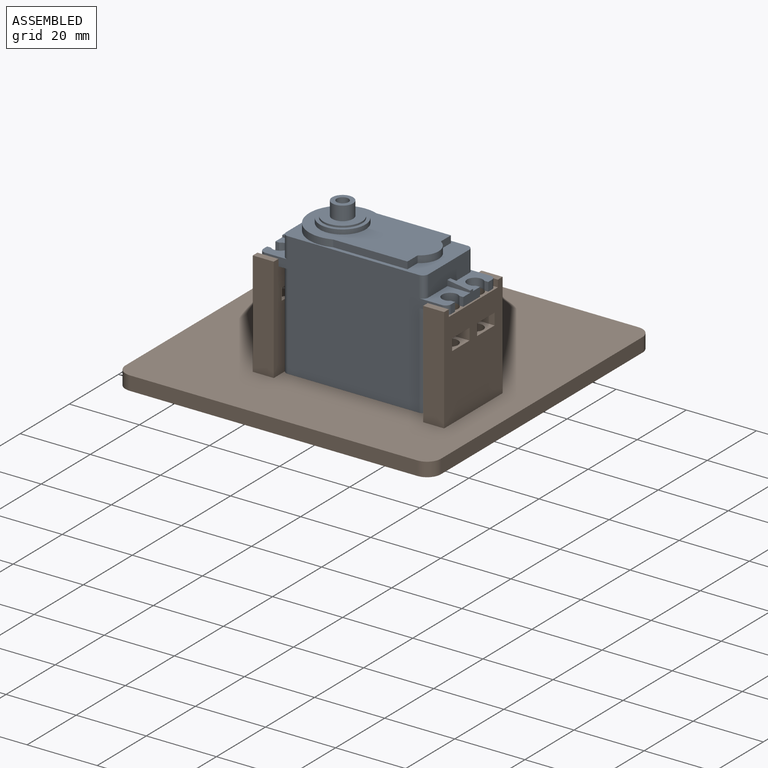
[diagram: assembled view]
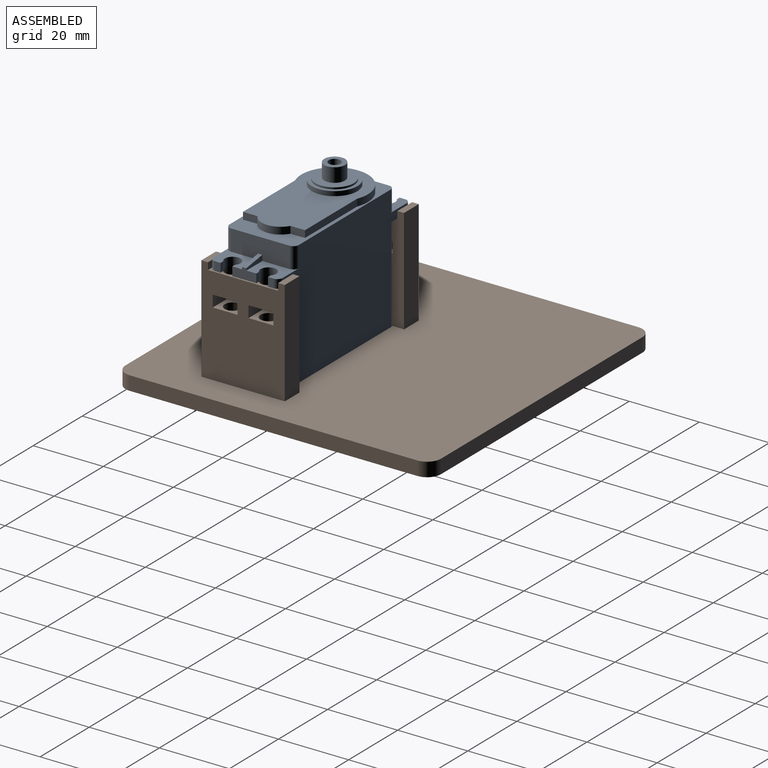
[diagram: assembled view, second angle]
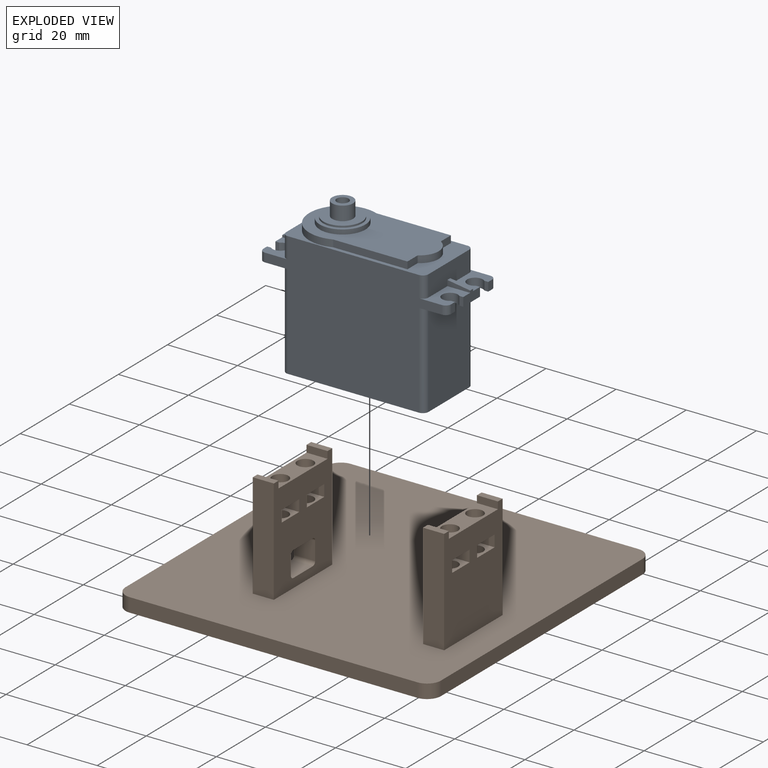
[diagram: exploded view]
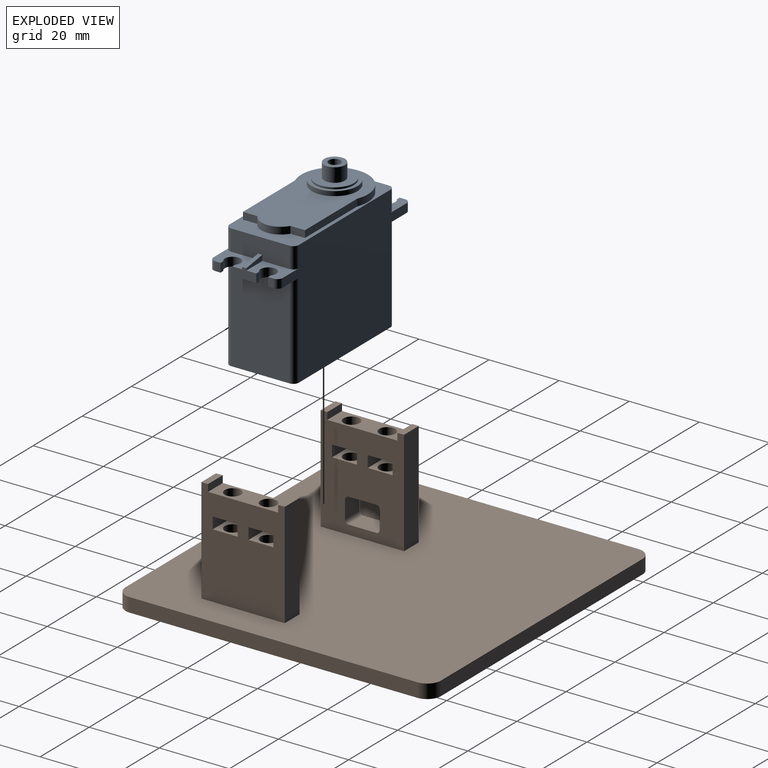
[diagram: exploded view, second angle]
FCSTD DOCUMENT  (FreeCAD 2023.1102R14555 (Git shallow))
Label: Base_Plate
License: All rights reserved
LicenseURL: https://en.wikipedia.org/wiki/All_rights_reserved
objects: Sketcher::SketchObject×11, Part::FeaturePython×7, App::FeaturePython×7, PartDesign::Pad×6, PartDesign::Pocket×6, PartDesign::Plane×5, PartDesign::Fillet×3, PartDesign::SubShapeBinder×2, PartDesign::Body×2, App::Part×2, App::Link×1
note: 82 computed .brp shape members not serialized (recipe doc carries the construction recipe); baked Part::Feature solids carry a one-line shape summary decoded from their .brp
EXTERNAL_REF file=Hitec_D625MW.FCStd obj=Part
EXTERNAL_REF file=Final_Assembly.FCStd obj=Assembly

FEATURE [App::Link] Link  label="Link(Hitec_D625MW)"
  AutoLinkLabel = true
  AutoPlacement = true
  LinkPlacement = pos=(-10.3,-9.9,-37.5) rot=(0,0,1;0rad)
  LinkedObject = -> <external Hitec_D625MW.FCStd>#Part
  Placement = pos=(-10.3,-9.9,-37.5) rot=(0,0,1;0rad)
  SyncGroupVisibility = false
  TreeRank = 1
  _LinkVersion = 1
FEATURE [Sketcher::SketchObject] Sketch
  ArcFitTolerance = 1e-06
  AttachmentSupport = -> [XY_Plane]
  ExternalBSplineMaxDegree = 5
  ExternalBSplineTolerance = 0.0001
  FullyConstrained = true
  InternalTolerance = 1e-06
  InvalidShape = false
  MakeInternals = false
  MapMode = 5
  Support = -> [XY_Plane]
  TreeRank = 21
  ValidateShape = false
  sketch-geometry (6):
    g0: LineSegment StartX=-40 StartY=-40 StartZ=0 EndX=-40 EndY=40 EndZ=0
    g1: LineSegment StartX=-40 StartY=40 StartZ=0 EndX=40 EndY=40 EndZ=0
    g2: LineSegment StartX=40 StartY=40 StartZ=0 EndX=40 EndY=-40 EndZ=0
    g3: LineSegment StartX=40 StartY=-40 StartZ=0 EndX=-40 EndY=-40 EndZ=0
    g4: GeomPoint [constr] X=0 Y=0 Z=0
    g5: Circle CenterX=0 CenterY=0 CenterZ=0 NormalX=0 NormalY=0 NormalZ=1 AngleXU=0 Radius=10
  constraints (14):
    c: Coincident(g0,g1)
    c: Coincident(g1,g2)
    c: Coincident(g2,g3)
    c: Coincident(g3,g0)
    c: Horizontal(g1)
    c: Horizontal(g3)
    c: Vertical(g0)
    c: Vertical(g2)
    c: Symmetric(g1,g0,g4)
    c: Coincident(g4,g-1)
    c: Equal(g1,g2)
    c: Distance(g1) = 80
    c: Diameter(g5) = 20
    c: Coincident(g5,g4)
FEATURE [PartDesign::Pad] Pad
  AddSubType = 0
  AlongSketchNormal = false
  AutoTaperInnerAngle = true
  CheckUpToFaceLimits = true
  ClaimChildren = false
  Direction = (0,0,1)
  Fit = 0
  FitJoin = 0
  InnerFit = 0
  InnerFitJoin = 0
  InvalidShape = false
  Length = 4
  Length2 = 10
  Linearize = true
  NewSolid = false
  Profile = -> Sketch
  ReferenceAxis = -> Sketch [N_Axis]
  Refine = true
  Suppress = false
  TaperInnerAngle = 0
  TaperInnerAngleRev = 0
  TreeRank = 22
  Type = 0
  ValidateShape = true
  _ProfileBasedVersion = 1
FEATURE [PartDesign::Fillet] Fillet
  AddSubType = 0
  Base = -> Pad [Edge1,Edge8,Edge5,Edge2]
  BaseFeature = -> Pad
  InvalidShape = false
  NewSolid = false
  Radius = 4
  Refine = true
  SupportTransform = false
  Suppress = false
  TreeRank = 23
  UseAllEdges = false
  ValidateShape = true
FEATURE [PartDesign::SubShapeBinder] Binder  label="Binder(*Hitec_D625MW)"
  BindCopyOnChange = 0
  BindMode = 0
  ClaimChildren = false
  Context = -> Assembly [Parts.Part.Body.Binder.]
  EdgeTolerance = 1e-06
  FillStyle = 0
  Fuse = false
  InvalidShape = false
  MakeFace = true
  MergeEdges = true
  OffsetFill = false
  OffsetIntersection = false
  OffsetJoinType = 0
  OffsetOpenResult = false
  Outline = false
  PartialLoad = false
  Relative = true
  SplitEdges = false
  Support = -> [Link]
  TightBound = false
  TreeRank = 39
  ValidateShape = false
  _Version = 8
FEATURE [Sketcher::SketchObject] Sketch001
  ArcFitTolerance = 1e-06
  AttachmentSupport = -> [Fillet]
  ExternalBSplineMaxDegree = 5
  ExternalBSplineTolerance = 0.0001
  ExternalGeometry = -> [Binder]
  FullyConstrained = true
  InternalTolerance = 1e-06
  InvalidShape = false
  MakeInternals = false
  MapMode = 5
  Placement = pos=(0,0,0) rot=(1,0,0;3.14159rad)
  Support = -> [Fillet]
  TreeRank = 38
  ValidateShape = false
  sketch-geometry (10):
    g0: LineSegment StartX=-17.3 StartY=11.9 StartZ=0 EndX=-10.8 EndY=11.9 EndZ=0
    g1: LineSegment StartX=-10.8 StartY=11.9 StartZ=0 EndX=-10.8 EndY=-11.9 EndZ=0
    g2: LineSegment StartX=-10.8 StartY=-11.9 StartZ=0 EndX=-17.3 EndY=-11.9 EndZ=0
    g3: LineSegment StartX=-17.3 StartY=-11.9 StartZ=0 EndX=-17.3 EndY=11.9 EndZ=0
    g4: LineSegment StartX=30.8 StartY=11.9 StartZ=0 EndX=37.3 EndY=11.9 EndZ=0
    g5: LineSegment StartX=37.3 StartY=11.9 StartZ=0 EndX=37.3 EndY=-11.9 EndZ=0
    g6: LineSegment StartX=37.3 StartY=-11.9 StartZ=0 EndX=30.8 EndY=-11.9 EndZ=0
    g7: LineSegment StartX=30.8 StartY=-11.9 StartZ=0 EndX=30.8 EndY=11.9 EndZ=0
    g8: LineSegment [constr] StartX=-15.2 StartY=9.9 StartZ=0 EndX=-15.2 EndY=11.9 EndZ=0
    g9: LineSegment [constr] StartX=-15.2 StartY=-9.9 StartZ=0 EndX=-15.2 EndY=-11.9 EndZ=0
  constraints (30):
    c: Coincident(g0,g1)
    c: Coincident(g1,g2)
    c: Coincident(g2,g3)
    c: Coincident(g3,g0)
    c: Horizontal(g0)
    c: Horizontal(g2)
    c: Vertical(g1)
    c: Vertical(g3)
    c: Coincident(g4,g5)
    c: Coincident(g5,g6)
    c: Coincident(g6,g7)
    c: Coincident(g7,g4)
    c: Horizontal(g4)
    c: Horizontal(g6)
    c: Vertical(g5)
    c: Vertical(g7)
    c: Equal(g1,g7)
    c: Equal(g0,g4)
    c: Distance(g-10,g1) = 0.5
    c: Distance(g-9,g7) = 0.5
    c: Distance(g-4,g3) = 0.5
    c: Horizontal(g4,g0)
    c: Coincident(g8,g-5)
    c: PointOnObject(g8,g0)
    c: Vertical(g8)
    c: Coincident(g9,g-3)
    c: PointOnObject(g9,g2)
    c: Vertical(g9)
    c: Equal(g9,g8)
    c: Distance(g8) = 2
FEATURE [PartDesign::Pad] Pad001
  AddSubType = 0
  AlongSketchNormal = false
  AutoTaperInnerAngle = true
  BaseFeature = -> Fillet
  CheckUpToFaceLimits = true
  ClaimChildren = false
  Direction = (0,0,-1)
  Fit = 0
  FitJoin = 0
  InnerFit = 0
  InnerFitJoin = 0
  InvalidShape = false
  Length = 10
  Length2 = 10
  Linearize = true
  NewSolid = false
  Profile = -> Sketch001
  ReferenceAxis = -> Sketch001 [N_Axis]
  Refine = true
  Suppress = false
  TaperInnerAngle = 0
  TaperInnerAngleRev = 0
  TreeRank = 40
  Type = 3
  UpToFace = -> Binder [Face2]
  ValidateShape = true
  _ProfileBasedVersion = 1
FEATURE [PartDesign::Plane] DatumPlane
  AttachmentSupport = -> [Pad001]
  InvalidShape = false
  Length = 80
  MapMode = 45
  MinimumLength = 10
  MinimumWidth = 10
  Placement = pos=(10,-1.98471e-11,-8) rot=(-0.707107,0.707107,0;3.14159rad)
  ResizeMode = 0
  Support = -> [Pad001]
  TreeRank = 41
  ValidateShape = false
  Width = 80
FEATURE [Sketcher::SketchObject] Sketch002
  ArcFitTolerance = 1e-06
  AttachmentSupport = -> [DatumPlane]
  ExternalBSplineMaxDegree = 5
  ExternalBSplineTolerance = 0.0001
  ExternalGeometry = -> [Binder,Pad001]
  FullyConstrained = true
  InternalTolerance = 1e-06
  InvalidShape = false
  MakeInternals = false
  MapMode = 5
  Placement = pos=(10,-1.98471e-11,-8) rot=(-0.707107,0.707107,0;3.14159rad)
  Support = -> [DatumPlane]
  TreeRank = 42
  ValidateShape = false
  sketch-geometry (8):
    g0: LineSegment StartX=-0.7 StartY=-20.8 StartZ=0 EndX=0.7 EndY=-20.8 EndZ=0
    g1: LineSegment StartX=0.7 StartY=-20.8 StartZ=0 EndX=0.7 EndY=-27.3 EndZ=0
    g2: LineSegment StartX=0.7 StartY=-27.3 StartZ=0 EndX=-0.7 EndY=-27.3 EndZ=0
    g3: LineSegment StartX=-0.7 StartY=-27.3 StartZ=0 EndX=-0.7 EndY=-20.8 EndZ=0
    g4: LineSegment StartX=0.7 StartY=20.8 StartZ=0 EndX=-0.7 EndY=20.8 EndZ=0
    g5: LineSegment StartX=-0.7 StartY=20.8 StartZ=0 EndX=-0.7 EndY=27.3 EndZ=0
    g6: LineSegment StartX=-0.7 StartY=27.3 StartZ=0 EndX=0.7 EndY=27.3 EndZ=0
    g7: LineSegment StartX=0.7 StartY=27.3 StartZ=0 EndX=0.7 EndY=20.8 EndZ=0
  constraints (22):
    c: Coincident(g0,g1)
    c: Coincident(g1,g2)
    c: Coincident(g2,g3)
    c: Coincident(g3,g0)
    c: Horizontal(g2)
    c: Vertical(g1)
    c: Vertical(g3)
    c: PointOnObject(g0,g-8)
    c: PointOnObject(g1,g-7)
    c: Symmetric(g0,g0,g-2)
    c: Distance(g0,g-6) = 0.1
    c: Coincident(g4,g5)
    c: Coincident(g5,g6)
    c: Coincident(g6,g7)
    c: Coincident(g7,g4)
    c: Horizontal(g6)
    c: Vertical(g5)
    c: Vertical(g7)
    c: PointOnObject(g4,g-9)
    c: PointOnObject(g5,g-10)
    c: Symmetric(g4,g4,g-2)
    c: Distance(g4,g-4) = 0.1
FEATURE [PartDesign::Pocket] Pocket
  AddSubType = 1
  AlongSketchNormal = false
  AutoTaperInnerAngle = true
  BaseFeature = -> Pad001
  CheckUpToFaceLimits = true
  ClaimChildren = false
  Direction = (0,0,1)
  Fit = 0
  FitJoin = 0
  InnerFit = 0
  InnerFitJoin = 0
  InvalidShape = false
  Length = 2.5
  Length2 = 10
  Linearize = true
  NewSolid = false
  Profile = -> Sketch002
  ReferenceAxis = -> Sketch002 [N_Axis]
  Refine = true
  Suppress = false
  TaperInnerAngle = 0
  TaperInnerAngleRev = 0
  TreeRank = 43
  Type = 0
  ValidateShape = true
  _ProfileBasedVersion = 1
  _Version = 1
FEATURE [Sketcher::SketchObject] Sketch003
  ArcFitTolerance = 1e-06
  AttachmentSupport = -> [DatumPlane]
  ExternalBSplineMaxDegree = 5
  ExternalBSplineTolerance = 0.0001
  ExternalGeometry = -> [Pocket,Binder]
  FullyConstrained = true
  InternalTolerance = 1e-06
  InvalidShape = false
  MakeInternals = false
  MapMode = 5
  Placement = pos=(10,-1.98471e-11,-8) rot=(-0.707107,0.707107,0;3.14159rad)
  Support = -> [DatumPlane]
  TreeRank = 44
  ValidateShape = false
  sketch-geometry (16):
    g0: LineSegment StartX=-11.9 StartY=-20.8 StartZ=0 EndX=-10 EndY=-20.8 EndZ=0
    g1: LineSegment StartX=-10 StartY=-20.8 StartZ=0 EndX=-10 EndY=-27.3 EndZ=0
    g2: LineSegment StartX=-10 StartY=-27.3 StartZ=0 EndX=-11.9 EndY=-27.3 EndZ=0
    g3: LineSegment StartX=-11.9 StartY=-27.3 StartZ=0 EndX=-11.9 EndY=-20.8 EndZ=0
    g4: LineSegment StartX=11.9 StartY=-20.8 StartZ=0 EndX=10 EndY=-20.8 EndZ=0
    g5: LineSegment StartX=10 StartY=-20.8 StartZ=0 EndX=10 EndY=-27.3 EndZ=0
    g6: LineSegment StartX=10 StartY=-27.3 StartZ=0 EndX=11.9 EndY=-27.3 EndZ=0
    g7: LineSegment StartX=11.9 StartY=-27.3 StartZ=0 EndX=11.9 EndY=-20.8 EndZ=0
    g8: LineSegment StartX=11.9 StartY=27.3 StartZ=0 EndX=10 EndY=27.3 EndZ=0
    g9: LineSegment StartX=10 StartY=27.3 StartZ=0 EndX=10 EndY=20.8 EndZ=0
    g10: LineSegment StartX=10 StartY=20.8 StartZ=0 EndX=11.9 EndY=20.8 EndZ=0
    g11: LineSegment StartX=11.9 StartY=20.8 StartZ=0 EndX=11.9 EndY=27.3 EndZ=0
    g12: LineSegment StartX=-11.9 StartY=27.3 StartZ=0 EndX=-10 EndY=27.3 EndZ=0
    g13: LineSegment StartX=-10 StartY=27.3 StartZ=0 EndX=-10 EndY=20.8 EndZ=0
    g14: LineSegment StartX=-10 StartY=20.8 StartZ=0 EndX=-11.9 EndY=20.8 EndZ=0
    g15: LineSegment StartX=-11.9 StartY=20.8 StartZ=0 EndX=-11.9 EndY=27.3 EndZ=0
  constraints (40):
    c: Coincident(g0,g1)
    c: Coincident(g1,g2)
    c: Coincident(g2,g3)
    c: Coincident(g3,g0)
    c: Horizontal(g0)
    c: Horizontal(g2)
    c: Vertical(g1)
    c: Coincident(g0,g-6)
    c: Coincident(g2,g-6)
    c: Coincident(g4,g5)
    c: Coincident(g5,g6)
    c: Coincident(g6,g7)
    c: Coincident(g7,g4)
    c: Horizontal(g4)
    c: Horizontal(g6)
    c: Vertical(g5)
    c: Coincident(g4,g-5)
    c: Coincident(g6,g-5)
    c: Coincident(g8,g9)
    c: Coincident(g9,g10)
    c: Coincident(g10,g11)
    c: Coincident(g11,g8)
    c: Horizontal(g8)
    c: Horizontal(g10)
    c: Vertical(g9)
    c: Coincident(g8,g-4)
    c: Coincident(g10,g-4)
    c: Coincident(g12,g13)
    c: Coincident(g13,g14)
    c: Coincident(g14,g15)
    c: Coincident(g15,g12)
    c: Horizontal(g12)
    c: Horizontal(g14)
    c: Vertical(g13)
    c: Coincident(g12,g-3)
    c: Coincident(g14,g-3)
    c: Equal(g12,g8)
    c: Equal(g8,g4)
    c: Equal(g4,g0)
    c: Distance(g-7,g13) = 0.1
FEATURE [PartDesign::Pad] Pad002
  AddSubType = 0
  AlongSketchNormal = false
  AutoTaperInnerAngle = true
  BaseFeature = -> Pocket
  CheckUpToFaceLimits = true
  ClaimChildren = false
  Direction = (0,0,-1)
  Fit = 0
  FitJoin = 0
  InnerFit = 0
  InnerFitJoin = 0
  InvalidShape = false
  Length = 2
  Length2 = 10
  Linearize = true
  NewSolid = false
  Profile = -> Sketch003
  ReferenceAxis = -> Sketch003 [N_Axis]
  Refine = true
  Suppress = false
  TaperInnerAngle = 0
  TaperInnerAngleRev = 0
  TreeRank = 45
  Type = 0
  ValidateShape = true
  _ProfileBasedVersion = 1
FEATURE [Sketcher::SketchObject] Sketch004
  ArcFitTolerance = 1e-06
  AttachmentSupport = -> [Pad002]
  ExternalBSplineMaxDegree = 5
  ExternalBSplineTolerance = 0.0001
  ExternalGeometry = -> [Binder]
  FullyConstrained = true
  InternalTolerance = 1e-06
  InvalidShape = false
  MakeInternals = false
  MapMode = 5
  Placement = pos=(0,0,4) rot=(0,0,1;0rad)
  Support = -> [Pad002]
  TreeRank = 46
  ValidateShape = false
  sketch-geometry (8):
    g0: Circle CenterX=-14.2 CenterY=5.1 CenterZ=0 NormalX=0 NormalY=0 NormalZ=1 AngleXU=0 Radius=2.3
    g1: Circle CenterX=-14.2 CenterY=-5.1 CenterZ=0 NormalX=0 NormalY=0 NormalZ=1 AngleXU=0 Radius=2.3
    g2: Circle CenterX=34.2 CenterY=5.1 CenterZ=0 NormalX=0 NormalY=0 NormalZ=1 AngleXU=0 Radius=2.3
    g3: Circle CenterX=34.2 CenterY=-5.1 CenterZ=0 NormalX=0 NormalY=0 NormalZ=1 AngleXU=0 Radius=2.3
    g4: Circle CenterX=-14.2 CenterY=5.1 CenterZ=0 NormalX=0 NormalY=0 NormalZ=1 AngleXU=0 Radius=3.75
    g5: Circle CenterX=-14.2 CenterY=-5.1 CenterZ=0 NormalX=0 NormalY=0 NormalZ=1 AngleXU=0 Radius=3.75
    g6: Circle CenterX=34.2 CenterY=5.1 CenterZ=0 NormalX=0 NormalY=0 NormalZ=1 AngleXU=0 Radius=3.75
    g7: Circle CenterX=34.2 CenterY=-5.1 CenterZ=0 NormalX=0 NormalY=0 NormalZ=1 AngleXU=0 Radius=3.75
  constraints (16):
    c: Coincident(g0,g-4)
    c: Coincident(g1,g-3)
    c: Coincident(g2,g-6)
    c: Coincident(g3,g-5)
    c: Equal(g2,g3)
    c: Equal(g3,g1)
    c: Equal(g1,g0)
    c: Diameter(g0) = 4.6
    c: Coincident(g4,g0)
    c: Coincident(g5,g1)
    c: Coincident(g6,g2)
    c: Coincident(g7,g3)
    c: Equal(g7,g6)
    c: Equal(g6,g4)
    c: Equal(g4,g5)
    c: Diameter(g5) = 7.5
FEATURE [PartDesign::Pocket] Pocket001
  AddSubType = 1
  AlongSketchNormal = false
  AutoTaperInnerAngle = true
  BaseFeature = -> Pad002
  CheckUpToFaceLimits = true
  ClaimChildren = false
  Direction = (0,0,-1)
  Fit = 0
  FitJoin = 0
  InnerFit = 0
  InnerFitJoin = 0
  InvalidShape = false
  Length = 5
  Length2 = 10
  Linearize = true
  NewSolid = false
  Profile = -> Sketch004 [Edge4,Edge3,Edge2,Edge1]
  ReferenceAxis = -> Sketch004 [N_Axis]
  Refine = true
  Suppress = false
  TaperInnerAngle = 0
  TaperInnerAngleRev = 0
  TreeRank = 47
  Type = 1
  ValidateShape = true
  _ProfileBasedVersion = 1
  _Version = 1
FEATURE [PartDesign::Pocket] Pocket002
  AddSubType = 1
  AlongSketchNormal = false
  AutoTaperInnerAngle = true
  BaseFeature = -> Pocket001
  CheckUpToFaceLimits = true
  ClaimChildren = false
  Direction = (0,0,-1)
  Fit = 0
  FitJoin = 0
  InnerFit = 0
  InnerFitJoin = 0
  InvalidShape = false
  Length = 3
  Length2 = 10
  Linearize = true
  NewSolid = false
  Profile = -> Sketch004 [Edge7,Edge8,Edge6,Edge5]
  ReferenceAxis = -> Sketch004 [N_Axis]
  Refine = true
  Suppress = false
  TaperInnerAngle = 0
  TaperInnerAngleRev = 0
  TreeRank = 48
  Type = 0
  ValidateShape = true
  _ProfileBasedVersion = 1
  _Version = 1
FEATURE [PartDesign::Body] Body
  AutoGroupSolids = false
  ClaimAllChildren = false
  ExportMode = 0
  Group = -> [Sketch,Pad,Fillet,Binder,Sketch001,Pad001,DatumPlane,Sketch002,Pocket,Sketch003,Pad002,Sketch004,Pocket001,Pocket002]
  InvalidShape = false
  Origin = -> Origin001
  Tip = -> Pocket002
  TreeRank = 19
  ValidateShape = false
  _ExportChildren = -> [Pad,Fillet,Binder,Pad001,DatumPlane,Pocket,Pad002,Pocket001,Pocket002]
  _GroupVersion = 1
FEATURE [App::Part] Part  label="Base_Plate"
  ClaimAllChildren = false
  ExportMode = 1
  Group = -> [Body]
  Origin = -> Origin
  TreeRank = 7
  _ExportChildren = -> [Body]
  _GroupVersion = 1
FEATURE [PartDesign::SubShapeBinder] Binder001  label="Binder001(*Hitec_D625MW)"
  BindCopyOnChange = 0
  BindMode = 0
  ClaimChildren = false
  Context = -> <external Final_Assembly.FCStd>#Assembly [Parts.Link.Parts.Part001.Body001.Binder001.]
  EdgeTolerance = 1e-06
  FillStyle = 0
  Fuse = false
  InvalidShape = false
  MakeFace = true
  MergeEdges = true
  OffsetFill = false
  OffsetIntersection = false
  OffsetJoinType = 0
  OffsetOpenResult = false
  Outline = false
  PartialLoad = false
  Relative = true
  SplitEdges = false
  Support = -> [Link]
  TightBound = false
  TreeRank = 68
  ValidateShape = false
  _Version = 8
FEATURE [PartDesign::Plane] DatumPlane001
  AttachmentOffset = pos=(0,0,1) rot=(0,0,1;0rad)
  AttachmentSupport = -> [Binder001]
  InvalidShape = false
  Length = 10
  MapMode = 5
  MinimumLength = 10
  MinimumWidth = 10
  Placement = pos=(0,0,-38.5) rot=(1,0,0;3.14159rad)
  ResizeMode = 0
  Support = -> [Binder001]
  TreeRank = 69
  ValidateShape = false
  Width = 10
FEATURE [Sketcher::SketchObject] Sketch005
  ArcFitTolerance = 1e-06
  AttachmentSupport = -> [DatumPlane001]
  ExternalBSplineMaxDegree = 5
  ExternalBSplineTolerance = 0.0001
  ExternalGeometry = -> [Binder001]
  FullyConstrained = true
  InternalTolerance = 1e-06
  InvalidShape = false
  MakeInternals = false
  MapMode = 5
  Placement = pos=(0,0,-38.5) rot=(1,0,0;3.14159rad)
  Support = -> [DatumPlane001]
  TreeRank = 70
  ValidateShape = false
  sketch-geometry (6):
    g0: LineSegment StartX=-43.7 StartY=-60 StartZ=0 EndX=46.3 EndY=-60 EndZ=0
    g1: LineSegment StartX=46.3 StartY=-60 StartZ=0 EndX=46.3 EndY=30 EndZ=0
    g2: LineSegment StartX=46.3 StartY=30 StartZ=0 EndX=-43.7 EndY=30 EndZ=0
    g3: LineSegment StartX=-43.7 StartY=30 StartZ=0 EndX=-43.7 EndY=-60 EndZ=0
    g4: LineSegment [constr] StartX=-8.7 StartY=9.9 StartZ=0 EndX=-43.7 EndY=9.9 EndZ=0
    g5: LineSegment [constr] StartX=28.7 StartY=9.9 StartZ=0 EndX=46.3 EndY=9.9 EndZ=0
  constraints (18):
    c: Coincident(g0,g1)
    c: Coincident(g1,g2)
    c: Coincident(g2,g3)
    c: Coincident(g3,g0)
    c: Horizontal(g0)
    c: Horizontal(g2)
    c: Vertical(g3)
    c: Equal(g1,g0)
    c: Distance(g1) = 90
    c: Coincident(g4,g-3)
    c: PointOnObject(g4,g3)
    c: Horizontal(g4)
    c: Coincident(g5,g-3)
    c: PointOnObject(g5,g1)
    c: Horizontal(g5)
    c: DistanceY(g-1,g2) = 30
    c: Vertical(g1)
    c: Distance(g4) = 35
FEATURE [PartDesign::Pad] Pad003
  AddSubType = 0
  AlongSketchNormal = false
  AutoTaperInnerAngle = true
  CheckUpToFaceLimits = true
  ClaimChildren = false
  Direction = (0,0,-1)
  Fit = 0
  FitJoin = 0
  InnerFit = 0
  InnerFitJoin = 0
  InvalidShape = false
  Length = 4
  Length2 = 10
  Linearize = true
  NewSolid = false
  Profile = -> Sketch005
  ReferenceAxis = -> Sketch005 [N_Axis]
  Refine = true
  Suppress = false
  TaperInnerAngle = 0
  TaperInnerAngleRev = 0
  TreeRank = 71
  Type = 0
  ValidateShape = true
  _ProfileBasedVersion = 1
FEATURE [Sketcher::SketchObject] Sketch006
  ArcFitTolerance = 1e-06
  AttachmentSupport = -> [Pad003]
  ExternalBSplineMaxDegree = 5
  ExternalBSplineTolerance = 0.0001
  ExternalGeometry = -> [Binder001]
  FullyConstrained = true
  InternalTolerance = 1e-06
  InvalidShape = false
  MakeInternals = false
  MapMode = 5
  Placement = pos=(0,0,-38.5) rot=(0,0,1;0rad)
  Support = -> [Pad003]
  TreeRank = 72
  ValidateShape = false
  sketch-geometry (10):
    g0: LineSegment StartX=31.3 StartY=11.9 StartZ=0 EndX=37.3 EndY=11.9 EndZ=0
    g1: LineSegment StartX=37.3 StartY=11.9 StartZ=0 EndX=37.3 EndY=-11.9 EndZ=0
    g2: LineSegment StartX=37.3 StartY=-11.9 StartZ=0 EndX=31.3 EndY=-11.9 EndZ=0
    g3: LineSegment StartX=31.3 StartY=-11.9 StartZ=0 EndX=31.3 EndY=11.9 EndZ=0
    g4: LineSegment StartX=-11.3 StartY=11.9 StartZ=0 EndX=-17.3 EndY=11.9 EndZ=0
    g5: LineSegment StartX=-17.3 StartY=11.9 StartZ=0 EndX=-17.3 EndY=-11.9 EndZ=0
    g6: LineSegment StartX=-17.3 StartY=-11.9 StartZ=0 EndX=-11.3 EndY=-11.9 EndZ=0
    g7: LineSegment StartX=-11.3 StartY=-11.9 StartZ=0 EndX=-11.3 EndY=11.9 EndZ=0
    g8: LineSegment [constr] StartX=-15.2 StartY=-9.9 StartZ=0 EndX=-15.2 EndY=-11.9 EndZ=0
    g9: LineSegment [constr] StartX=-15.2 StartY=9.9 StartZ=0 EndX=-15.2 EndY=11.9 EndZ=0
  constraints (28):
    c: Coincident(g0,g1)
    c: Coincident(g1,g2)
    c: Coincident(g2,g3)
    c: Coincident(g3,g0)
    c: Horizontal(g0)
    c: Horizontal(g2)
    c: Vertical(g3)
    c: Coincident(g4,g5)
    c: Coincident(g5,g6)
    c: Coincident(g6,g7)
    c: Coincident(g7,g4)
    c: Horizontal(g4)
    c: Horizontal(g6)
    c: Vertical(g7)
    c: Distance(g-3,g3) = 1
    c: Distance(g-4,g7) = 1
    c: Symmetric(g0,g1,g-1)
    c: Symmetric(g5,g4,g-1)
    c: Distance(g-6,g5) = 0.5
    c: Distance(g-5,g1) = 0.5
    c: Equal(g5,g1)
    c: Coincident(g8,g-7)
    c: PointOnObject(g8,g6)
    c: Vertical(g8)
    c: Coincident(g9,g-8)
    c: PointOnObject(g9,g4)
    c: Vertical(g9)
    c: Distance(g8) = 2
FEATURE [PartDesign::Pad] Pad004
  AddSubType = 0
  AlongSketchNormal = false
  AutoTaperInnerAngle = true
  BaseFeature = -> Pad003
  CheckUpToFaceLimits = true
  ClaimChildren = false
  Direction = (0,0,1)
  Fit = 0
  FitJoin = 0
  InnerFit = 0
  InnerFitJoin = 0
  InvalidShape = false
  Length = 10
  Length2 = 10
  Linearize = true
  NewSolid = false
  Profile = -> Sketch006
  ReferenceAxis = -> Sketch006 [N_Axis]
  Refine = true
  Suppress = false
  TaperInnerAngle = 0
  TaperInnerAngleRev = 0
  TreeRank = 73
  Type = 3
  UpToFace = -> Binder001 [Face37]
  ValidateShape = true
  _ProfileBasedVersion = 1
FEATURE [PartDesign::Plane] DatumPlane002
  AttachmentSupport = -> [Pad004]
  InvalidShape = false
  Length = 10
  MapMode = 45
  MinimumLength = 10
  MinimumWidth = 10
  Placement = pos=(10,-6e-16,-10.5) rot=(0,0,1;1.5708rad)
  ResizeMode = 0
  Support = -> [Pad004]
  TreeRank = 74
  ValidateShape = false
  Width = 10
FEATURE [Sketcher::SketchObject] Sketch007
  ArcFitTolerance = 1e-06
  AttachmentSupport = -> [DatumPlane002]
  ExternalBSplineMaxDegree = 5
  ExternalBSplineTolerance = 0.0001
  ExternalGeometry = -> [Pad004,Binder001]
  FullyConstrained = true
  InternalTolerance = 1e-06
  InvalidShape = false
  MakeInternals = false
  MapMode = 5
  Placement = pos=(10,-6e-16,-10.5) rot=(0,0,1;1.5708rad)
  Support = -> [DatumPlane002]
  TreeRank = 75
  ValidateShape = false
  sketch-geometry (16):
    g0: LineSegment StartX=-11.9 StartY=-21.3 StartZ=0 EndX=-10 EndY=-21.3 EndZ=0
    g1: LineSegment StartX=-10 StartY=-21.3 StartZ=0 EndX=-10 EndY=-27.3 EndZ=0
    g2: LineSegment StartX=-10 StartY=-27.3 StartZ=0 EndX=-11.9 EndY=-27.3 EndZ=0
    g3: LineSegment StartX=-11.9 StartY=-27.3 StartZ=0 EndX=-11.9 EndY=-21.3 EndZ=0
    g4: LineSegment StartX=11.9 StartY=-21.3 StartZ=0 EndX=10 EndY=-21.3 EndZ=0
    g5: LineSegment StartX=10 StartY=-21.3 StartZ=0 EndX=10 EndY=-27.3 EndZ=0
    g6: LineSegment StartX=10 StartY=-27.3 StartZ=0 EndX=11.9 EndY=-27.3 EndZ=0
    g7: LineSegment StartX=11.9 StartY=-27.3 StartZ=0 EndX=11.9 EndY=-21.3 EndZ=0
    g8: LineSegment StartX=11.9 StartY=27.3 StartZ=0 EndX=10 EndY=27.3 EndZ=0
    g9: LineSegment StartX=10 StartY=27.3 StartZ=0 EndX=10 EndY=21.3 EndZ=0
    g10: LineSegment StartX=10 StartY=21.3 StartZ=0 EndX=11.9 EndY=21.3 EndZ=0
    g11: LineSegment StartX=11.9 StartY=21.3 StartZ=0 EndX=11.9 EndY=27.3 EndZ=0
    g12: LineSegment StartX=-11.9 StartY=27.3 StartZ=0 EndX=-10 EndY=27.3 EndZ=0
    g13: LineSegment StartX=-10 StartY=27.3 StartZ=0 EndX=-10 EndY=21.3 EndZ=0
    g14: LineSegment StartX=-10 StartY=21.3 StartZ=0 EndX=-11.9 EndY=21.3 EndZ=0
    g15: LineSegment StartX=-11.9 StartY=21.3 StartZ=0 EndX=-11.9 EndY=27.3 EndZ=0
  constraints (40):
    c: Coincident(g0,g1)
    c: Coincident(g1,g2)
    c: Coincident(g2,g3)
    c: Coincident(g3,g0)
    c: Horizontal(g0)
    c: Horizontal(g2)
    c: Vertical(g1)
    c: Coincident(g0,g-6)
    c: Coincident(g4,g5)
    c: Coincident(g5,g6)
    c: Coincident(g6,g7)
    c: Coincident(g7,g4)
    c: Horizontal(g4)
    c: Horizontal(g6)
    c: Vertical(g5)
    c: Coincident(g4,g-5)
    c: Coincident(g8,g9)
    c: Coincident(g9,g10)
    c: Coincident(g10,g11)
    c: Coincident(g11,g8)
    c: Horizontal(g8)
    c: Horizontal(g10)
    c: Vertical(g9)
    c: Coincident(g8,g-4)
    c: Coincident(g12,g13)
    c: Coincident(g13,g14)
    c: Coincident(g14,g15)
    c: Coincident(g15,g12)
    c: Horizontal(g12)
    c: Horizontal(g14)
    c: Vertical(g13)
    c: Coincident(g12,g-3)
    c: Coincident(g14,g-3)
    c: Coincident(g2,g-6)
    c: Coincident(g6,g-5)
    c: Coincident(g10,g-4)
    c: Equal(g8,g12)
    c: Equal(g12,g2)
    c: Equal(g2,g6)
    c: Distance(g9,g-7) = 0.1
FEATURE [PartDesign::Pad] Pad005
  AddSubType = 0
  AlongSketchNormal = false
  AutoTaperInnerAngle = true
  BaseFeature = -> Pad004
  CheckUpToFaceLimits = true
  ClaimChildren = false
  Direction = (-1e-16,0,1)
  Fit = 0
  FitJoin = 0
  InnerFit = 0
  InnerFitJoin = 0
  InvalidShape = false
  Length = 2
  Length2 = 10
  Linearize = true
  NewSolid = false
  Profile = -> Sketch007
  ReferenceAxis = -> Sketch007 [N_Axis]
  Refine = true
  Suppress = false
  TaperInnerAngle = 0
  TaperInnerAngleRev = 0
  TreeRank = 76
  Type = 0
  ValidateShape = true
  _ProfileBasedVersion = 1
FEATURE [Sketcher::SketchObject] Sketch008
  ArcFitTolerance = 1e-06
  AttachmentSupport = -> [DatumPlane002]
  ExternalBSplineMaxDegree = 5
  ExternalBSplineTolerance = 0.0001
  ExternalGeometry = -> [Binder001]
  FullyConstrained = true
  InternalTolerance = 1e-06
  InvalidShape = false
  MakeInternals = false
  MapMode = 5
  Placement = pos=(10,-6e-16,-10.5) rot=(0,0,1;1.5708rad)
  Support = -> [DatumPlane002]
  TreeRank = 77
  ValidateShape = false
  sketch-geometry (4):
    g0: Circle CenterX=-5.1 CenterY=24.2 CenterZ=0 NormalX=0 NormalY=0 NormalZ=1 AngleXU=0 Radius=2.3
    g1: Circle CenterX=5.1 CenterY=24.2 CenterZ=0 NormalX=0 NormalY=0 NormalZ=1 AngleXU=0 Radius=2.3
    g2: Circle CenterX=-5.1 CenterY=-24.2 CenterZ=0 NormalX=0 NormalY=0 NormalZ=1 AngleXU=0 Radius=2.3
    g3: Circle CenterX=5.1 CenterY=-24.2 CenterZ=0 NormalX=0 NormalY=0 NormalZ=1 AngleXU=0 Radius=2.3
  constraints (8):
    c: Coincident(g0,g-5)
    c: Coincident(g1,g-6)
    c: Coincident(g2,g-3)
    c: Coincident(g3,g-4)
    c: Equal(g3,g2)
    c: Equal(g2,g0)
    c: Equal(g0,g1)
    c: Diameter(g2) = 4.6
FEATURE [PartDesign::Pocket] Pocket003
  AddSubType = 1
  AlongSketchNormal = false
  AutoTaperInnerAngle = true
  BaseFeature = -> Pad005
  CheckUpToFaceLimits = true
  ClaimChildren = false
  Direction = (1e-16,0,-1)
  Fit = 0
  FitJoin = 0
  InnerFit = 0
  InnerFitJoin = 0
  InvalidShape = false
  Length = 17
  Length2 = 10
  Linearize = true
  NewSolid = false
  Profile = -> Sketch008
  ReferenceAxis = -> Sketch008 [N_Axis]
  Refine = true
  Suppress = false
  TaperInnerAngle = 0
  TaperInnerAngleRev = 0
  TreeRank = 78
  Type = 0
  ValidateShape = true
  _ProfileBasedVersion = 1
  _Version = 1
FEATURE [PartDesign::Plane] DatumPlane003
  AttachmentOffset = pos=(0,0,0) rot=(1,0,0;1.5708rad)
  AttachmentSupport = -> [Pocket003]
  InvalidShape = false
  Length = 24.3309
  MapMode = 45
  MinimumLength = 10
  MinimumWidth = 10
  Placement = pos=(10,4e-16,-24.3309) rot=(0,1,0;4.71239rad)
  ResizeMode = 0
  Support = -> [Pocket003]
  TreeRank = 79
  ValidateShape = false
  Width = 10
FEATURE [Sketcher::SketchObject] Sketch009
  ArcFitTolerance = 1e-06
  AttachmentSupport = -> [DatumPlane003]
  ExternalBSplineMaxDegree = 5
  ExternalBSplineTolerance = 0.0001
  ExternalGeometry = -> [Pocket003,Binder001]
  FullyConstrained = true
  InternalTolerance = 1e-06
  InvalidShape = false
  MakeInternals = false
  MapMode = 5
  Placement = pos=(10,4e-16,-24.3309) rot=(0,-1,0;1.5708rad)
  Support = -> [DatumPlane003]
  TreeRank = 80
  ValidateShape = false
  sketch-geometry (11):
    g0: GeomPoint [constr] X=13.8309 Y=5.1 Z=0
    g1: GeomPoint [constr] X=13.8309 Y=-5.1 Z=0
    g2: LineSegment StartX=7.83086 StartY=-8.65 StartZ=0 EndX=4.53086 EndY=-8.65 EndZ=0
    g3: LineSegment StartX=4.53086 StartY=-8.65 StartZ=0 EndX=4.53086 EndY=-1.55 EndZ=0
    g4: LineSegment StartX=4.53086 StartY=-1.55 StartZ=0 EndX=7.83086 EndY=-1.55 EndZ=0
    g5: LineSegment StartX=7.83086 StartY=-1.55 StartZ=0 EndX=7.83086 EndY=-8.65 EndZ=0
    g6: LineSegment StartX=7.83086 StartY=1.55 StartZ=0 EndX=4.53086 EndY=1.55 EndZ=0
    g7: LineSegment StartX=4.53086 StartY=1.55 StartZ=0 EndX=4.53086 EndY=8.65 EndZ=0
    g8: LineSegment StartX=4.53086 StartY=8.65 StartZ=0 EndX=7.83086 EndY=8.65 EndZ=0
    g9: LineSegment StartX=7.83086 StartY=8.65 StartZ=0 EndX=7.83086 EndY=1.55 EndZ=0
    g10: LineSegment [constr] StartX=13.8309 StartY=-5.1 StartZ=0 EndX=7.83086 EndY=-5.1 EndZ=0
  constraints (27):
    c: Symmetric(g-4,g-5,g1)
    c: Symmetric(g-6,g-7,g0)
    c: Coincident(g2,g3)
    c: Coincident(g3,g4)
    c: Coincident(g4,g5)
    c: Coincident(g5,g2)
    c: Horizontal(g2)
    c: Horizontal(g4)
    c: Vertical(g3)
    c: Vertical(g5)
    c: Coincident(g6,g7)
    c: Coincident(g7,g8)
    c: Coincident(g8,g9)
    c: Coincident(g9,g6)
    c: Horizontal(g6)
    c: Horizontal(g8)
    c: Vertical(g7)
    c: Vertical(g9)
    c: Equal(g5,g9)
    c: Equal(g4,g6)
    c: Symmetric(g4,g6,g-1)
    c: Distance(g3) = 7.1
    c: Distance(g2) = 3.3
    c: Coincident(g10,g1)
    c: Horizontal(g10)
    c: Symmetric(g4,g2,g10)
    c: Distance(g10) = 6
FEATURE [PartDesign::Pocket] Pocket004
  AddSubType = 1
  AlongSketchNormal = false
  AutoTaperInnerAngle = true
  BaseFeature = -> Pocket003
  CheckUpToFaceLimits = true
  ClaimChildren = false
  Direction = (1,6.04e-14,1.848e-13)
  Fit = 0
  FitJoin = 0
  InnerFit = 0
  InnerFitJoin = 0
  InvalidShape = false
  Length = 5
  Length2 = 10
  Linearize = true
  Midplane = true
  NewSolid = false
  Profile = -> Sketch009
  ReferenceAxis = -> Sketch009 [N_Axis]
  Refine = true
  Suppress = false
  TaperInnerAngle = 0
  TaperInnerAngleRev = 0
  TreeRank = 81
  Type = 1
  ValidateShape = true
  _ProfileBasedVersion = 1
  _Version = 1
FEATURE [PartDesign::Plane] DatumPlane004
  AttachmentSupport = -> [Pocket004]
  InvalidShape = false
  Length = 19.8
  MapMode = 5
  MinimumLength = 10
  MinimumWidth = 10
  Placement = pos=(-11.3,0,0) rot=(0.57735,0.57735,0.57735;2.0944rad)
  ResizeMode = 0
  Support = -> [Pocket004]
  TreeRank = 82
  ValidateShape = false
  Width = 43.3
FEATURE [Sketcher::SketchObject] Sketch010
  ArcFitTolerance = 1e-06
  AttachmentSupport = -> [DatumPlane004]
  ExternalBSplineMaxDegree = 5
  ExternalBSplineTolerance = 0.0001
  ExternalGeometry = -> [Binder001]
  FullyConstrained = true
  InternalTolerance = 1e-06
  InvalidShape = false
  MakeInternals = false
  MapMode = 5
  Placement = pos=(-11.3,0,0) rot=(0.57735,0.57735,0.57735;2.0944rad)
  Support = -> [DatumPlane004]
  TreeRank = 83
  ValidateShape = false
  sketch-geometry (7):
    g0: LineSegment StartX=4.95 StartY=-35.9 StartZ=0 EndX=4.95 EndY=-28.7 EndZ=0
    g1: LineSegment StartX=4.95 StartY=-28.7 StartZ=0 EndX=-4.95 EndY=-28.7 EndZ=0
    g2: LineSegment StartX=-4.95 StartY=-28.7 StartZ=0 EndX=-4.95 EndY=-35.9 EndZ=0
    g3: LineSegment StartX=-4.95 StartY=-35.9 StartZ=0 EndX=4.95 EndY=-35.9 EndZ=0
    g4: GeomPoint [constr] X=0 Y=-32.3 Z=0
    g5: LineSegment [constr] StartX=-4.95 StartY=-28.7 StartZ=0 EndX=-3.45 EndY=-30.2 EndZ=0
    g6: LineSegment [constr] StartX=-4.95 StartY=-35.9 StartZ=0 EndX=-3.45 EndY=-34.4 EndZ=0
  constraints (17):
    c: Coincident(g0,g1)
    c: Coincident(g1,g2)
    c: Coincident(g2,g3)
    c: Coincident(g3,g0)
    c: Horizontal(g1)
    c: Horizontal(g3)
    c: Vertical(g0)
    c: Vertical(g2)
    c: Symmetric(g1,g0,g4)
    c: PointOnObject(g4,g-2)
    c: Coincident(g5,g1)
    c: Coincident(g5,g-4)
    c: Angle(g5,g1) = 0.785398
    c: Distance(g-4,g2) = 1.5
    c: Coincident(g6,g2)
    c: Coincident(g6,g-4)
    c: Angle(g3,g6) = 0.785398
FEATURE [PartDesign::Pocket] Pocket005
  AddSubType = 1
  AlongSketchNormal = false
  AutoTaperInnerAngle = true
  BaseFeature = -> Pocket004
  CheckUpToFaceLimits = true
  ClaimChildren = false
  Direction = (-1,0,0)
  Fit = 0
  FitJoin = 0
  InnerFit = 0
  InnerFitJoin = 0
  InvalidShape = false
  Length = 10
  Length2 = 10
  Linearize = true
  NewSolid = false
  Profile = -> Sketch010
  ReferenceAxis = -> Sketch010 [N_Axis]
  Refine = true
  Suppress = false
  TaperInnerAngle = 0
  TaperInnerAngleRev = 0
  TreeRank = 84
  Type = 0
  ValidateShape = true
  _ProfileBasedVersion = 1
  _Version = 1
FEATURE [PartDesign::Fillet] Fillet001
  AddSubType = 0
  Base = -> Pocket005 [Edge105,Edge108,Edge107,Edge106]
  BaseFeature = -> Pocket005
  InvalidShape = false
  NewSolid = false
  Radius = 1
  Refine = true
  SupportTransform = false
  Suppress = false
  TreeRank = 85
  UseAllEdges = false
  ValidateShape = true
FEATURE [PartDesign::Fillet] Fillet002
  AddSubType = 0
  Base = -> Fillet001 [Edge92,Edge90,Edge88,Edge87]
  BaseFeature = -> Fillet001
  InvalidShape = false
  NewSolid = false
  Radius = 4
  Refine = true
  SupportTransform = false
  Suppress = false
  TreeRank = 86
  UseAllEdges = false
  ValidateShape = true
FEATURE [PartDesign::Body] Body001
  AutoGroupSolids = false
  ClaimAllChildren = false
  ExportMode = 0
  Group = -> [Binder001,DatumPlane001,Sketch005,Pad003,Sketch006,Pad004,DatumPlane002,Sketch007,Pad005,Sketch008,Pocket003,DatumPlane003,Sketch009,Pocket004,DatumPlane004,Sketch010,Pocket005,Fillet001,Fillet002]
  InvalidShape = false
  Origin = -> Origin003
  Tip = -> Fillet002
  TreeRank = 67
  ValidateShape = false
  _ExportChildren = -> [Binder001,DatumPlane001,Pad003,Pad004,DatumPlane002,Pad005,Pocket003,DatumPlane003,Pocket004,DatumPlane004,Pocket005,Fillet001,Fillet002]
  _GroupVersion = 1
FEATURE [App::Part] Part001  label="Base_Plate_V2"
  ClaimAllChildren = false
  ExportMode = 1
  Group = -> [Body001]
  Origin = -> Origin002
  TreeRank = 55
  _ExportChildren = -> [Body001]
  _GroupVersion = 1
FEATURE [Part::FeaturePython] Parts  # WARN: FeaturePython — macro-defined, semantics opaque (R4)
  Group = -> [Part,Part001,Link]
  GroupMode = 0
  InvalidShape = false
  TreeRank = 0
  ValidateShape = false
  _LinkVersion = 1
FEATURE [Part::FeaturePython] Assembly  label="Base_Plate_Assembly"  # WARN: FeaturePython — macro-defined, semantics opaque (R4)
  AutoRelax = true
  BuildShape = 0
  Freeze = false
  Group = -> [Constraints,Elements,Parts]
  InvalidShape = false
  TreeRank = 2
  ValidateShape = false
  Verbose = false
  _LinkVersion = 1
  _SolverType = 1
  _Version = 1
FEATURE [App::FeaturePython] Constraints  # WARN: FeaturePython — macro-defined, semantics opaque (R4)
  Group = -> [Constraint,Constraint001]
  TreeRank = 0
  _LinkVersion = 1
  _Version = 1
FEATURE [App::FeaturePython] Elements  # WARN: FeaturePython — macro-defined, semantics opaque (R4)
  Group = -> [_Element,_Element001,_Element002,Element,Element001]
  TreeRank = 0
  _LinkVersion = 1
FEATURE [App::FeaturePython] Constraint  label="Locked"  # WARN: FeaturePython — macro-defined, semantics opaque (R4)
  Disabled = false
  Group = -> [ElementLink]
  TreeRank = 27
  _ConstraintType = 0
  _LinkVersion = 1
  _Parent = -> Constraints
FEATURE [App::FeaturePython] ElementLink  label="_Element"  # link proxy (typed FeaturePython)
  LinkTransform = true
  LinkedObject = -> _Element
  TreeRank = 25
  _LinkVersion = 1
  _Parent = -> Constraint
FEATURE [Part::FeaturePython] _Element  # link proxy (typed FeaturePython)
  Detach = false
  InvalidShape = false
  LinkTransform = true
  LinkedObject = -> Part [Body.Fillet.Face2]
  TreeRank = 28
  ValidateShape = false
  _LinkVersion = 1
  _Parent = -> Elements
FEATURE [App::FeaturePython] Constraint001  label="Attachment"  # WARN: FeaturePython — macro-defined, semantics opaque (R4)
  Cascade = false
  Disabled = false
  Group = -> [ElementLink001,ElementLink002]
  Multiply = false
  TreeRank = 34
  _ConstraintType = 45
  _LinkVersion = 1
  _Parent = -> Constraints
FEATURE [App::FeaturePython] ElementLink001  label="_Element001"  # link proxy (typed FeaturePython)
  LinkTransform = true
  LinkedObject = -> _Element001
  TreeRank = 30
  _LinkVersion = 1
  _Parent = -> Constraint001
FEATURE [Part::FeaturePython] _Element001  # link proxy (typed FeaturePython)
  Detach = false
  InvalidShape = false
  LinkTransform = true
  LinkedObject = -> Link [Body.Fillet.Edge169]
  TreeRank = 35
  ValidateShape = false
  _LinkVersion = 1
  _Parent = -> Elements
FEATURE [App::FeaturePython] ElementLink002  label="_Element002"  # link proxy (typed FeaturePython)
  LinkTransform = true
  LinkedObject = -> _Element002
  TreeRank = 32
  _LinkVersion = 1
  _Parent = -> Constraint001
FEATURE [Part::FeaturePython] _Element002  # link proxy (typed FeaturePython)
  Detach = false
  InvalidShape = false
  LinkTransform = true
  LinkedObject = -> Part [Body.Fillet.Edge12]
  TreeRank = 36
  ValidateShape = false
  _LinkVersion = 1
  _Parent = -> Elements
FEATURE [Part::FeaturePython] Element  # link proxy (typed FeaturePython)
  Detach = false
  InvalidShape = false
  LinkTransform = true
  LinkedObject = -> Link [Body.Fillet.Face34]
  TreeRank = 49
  ValidateShape = false
  _LinkVersion = 1
  _Parent = -> Elements
FEATURE [Part::FeaturePython] Element001  # link proxy (typed FeaturePython)
  Detach = false
  InvalidShape = false
  LinkTransform = true
  LinkedObject = -> Link [Body.Fillet.Face63]
  TreeRank = 50
  ValidateShape = false
  _LinkVersion = 1
  _Parent = -> Elements

RESOLVED EXTERNAL PARTS (link-assembly join: the EXTERNAL_REF files above that resolve inside this repo's crawl, each included once):
---- part Final_Assembly.FCStd = doc fcstd_21778fd5217a ----
FCSTD DOCUMENT  (FreeCAD 2023.1102R14555 (Git shallow))
Label: Final_Assembly
License: All rights reserved
LicenseURL: https://en.wikipedia.org/wiki/All_rights_reserved
objects: App::FeaturePython×10, Part::FeaturePython×7, App::Link×3
note: 6 computed .brp shape members not serialized (recipe doc carries the construction recipe); baked Part::Feature solids carry a one-line shape summary decoded from their .brp
EXTERNAL_REF file=Base_Plate.FCStd obj=Assembly
EXTERNAL_REF file=Top_Base.FCStd obj=Assembly
EXTERNAL_REF file=Camera_Base.FCStd obj=Assembly

FEATURE [App::Link] Link  label="Link(Base_Plate_Assembly)"
  AutoLinkLabel = true
  AutoPlacement = true
  LinkedObject = -> <external Base_Plate.FCStd>#Assembly
  SyncGroupVisibility = false
  TreeRank = 1
  _LinkVersion = 1
FEATURE [App::Link] Link001  label="Link001(Top_Base_Assembly)"
  AutoLinkLabel = true
  AutoPlacement = true
  LinkPlacement = pos=(0,0,8.3) rot=(0,0,1;1.5708rad)
  LinkedObject = -> <external Top_Base.FCStd>#Assembly
  Placement = pos=(0,0,8.3) rot=(0,0,1;1.5708rad)
  SyncGroupVisibility = false
  TreeRank = 2
  _LinkVersion = 1
FEATURE [App::Link] Link002  label="Link002(Camera_Base_Assembly)"
  AutoLinkLabel = true
  AutoPlacement = true
  LinkPlacement = pos=(-19.7,-5.8,22.2) rot=(-1.2e-05,-1.2e-05,1;1.5708rad)
  LinkedObject = -> <external Camera_Base.FCStd>#Assembly
  Placement = pos=(-19.7,-5.8,22.2) rot=(-1.2e-05,-1.2e-05,1;1.5708rad)
  SyncGroupVisibility = false
  TreeRank = 16
  _LinkVersion = 1
FEATURE [Part::FeaturePython] Parts  # WARN: FeaturePython — macro-defined, semantics opaque (R4)
  Group = -> [Link,Link001,Link002]
  GroupMode = 0
  InvalidShape = false
  TreeRank = 0
  ValidateShape = false
  _LinkVersion = 1
FEATURE [Part::FeaturePython] Assembly  # WARN: FeaturePython — macro-defined, semantics opaque (R4)
  AutoRelax = true
  BuildShape = 0
  Freeze = false
  Group = -> [Constraints,Elements,Parts]
  InvalidShape = false
  TreeRank = 0
  ValidateShape = false
  Verbose = false
  _LinkVersion = 1
  _SolverType = 1
  _Version = 1
FEATURE [App::FeaturePython] Constraints  # WARN: FeaturePython — macro-defined, semantics opaque (R4)
  Group = -> [Constraint,Constraint001,Constraint002]
  TreeRank = 0
  _LinkVersion = 1
  _Version = 1
FEATURE [App::FeaturePython] Elements  # WARN: FeaturePython — macro-defined, semantics opaque (R4)
  Group = -> [_Element,_Element001,_Element002,_Element003,_Element004]
  TreeRank = 0
  _LinkVersion = 1
FEATURE [App::FeaturePython] Constraint  label="Locked"  # WARN: FeaturePython — macro-defined, semantics opaque (R4)
  Disabled = false
  Group = -> [ElementLink]
  TreeRank = 6
  _ConstraintType = 0
  _LinkVersion = 1
  _Parent = -> Constraints
FEATURE [App::FeaturePython] ElementLink  label="_Element"  # link proxy (typed FeaturePython)
  LinkTransform = true
  LinkedObject = -> _Element
  TreeRank = 4
  _LinkVersion = 1
  _Parent = -> Constraint
FEATURE [Part::FeaturePython] _Element  # link proxy (typed FeaturePython)
  Detach = false
  InvalidShape = false
  LinkTransform = true
  LinkedObject = -> Link [1.$Element.]
  TreeRank = 7
  ValidateShape = false
  _LinkVersion = 1
  _Parent = -> Elements
FEATURE [App::FeaturePython] Constraint001  label="PlaneCoincident"  # WARN: FeaturePython — macro-defined, semantics opaque (R4)
  Angle = 0
  AnglePitch = 0
  AngleRoll = 0
  Cascade = false
  Disabled = false
  Group = -> [ElementLink001,ElementLink002]
  LockAngle = true
  Multiply = false
  OffsetX = 0
  OffsetY = 0
  TreeRank = 13
  _ConstraintType = 35
  _LinkVersion = 1
  _Parent = -> Constraints
FEATURE [App::FeaturePython] ElementLink001  label="_Element001"  # link proxy (typed FeaturePython)
  LinkTransform = true
  LinkedObject = -> _Element001
  TreeRank = 9
  _LinkVersion = 1
  _Parent = -> Constraint001
FEATURE [Part::FeaturePython] _Element001  # link proxy (typed FeaturePython)
  Detach = false
  InvalidShape = false
  LinkTransform = true
  LinkedObject = -> Link [1.$Element001.]
  TreeRank = 14
  ValidateShape = false
  _LinkVersion = 1
  _Parent = -> Elements
FEATURE [App::FeaturePython] ElementLink002  label="_Element002"  # link proxy (typed FeaturePython)
  LinkTransform = true
  LinkedObject = -> _Element002
  TreeRank = 11
  _LinkVersion = 1
  _Parent = -> Constraint001
FEATURE [Part::FeaturePython] _Element002  # link proxy (typed FeaturePython)
  Detach = false
  InvalidShape = false
  LinkTransform = true
  LinkedObject = -> Link001 [1.$_Element.]
  TreeRank = 15
  ValidateShape = false
  _LinkVersion = 1
  _Parent = -> Elements
FEATURE [App::FeaturePython] Constraint002  label="PlaneCoincident001"  # WARN: FeaturePython — macro-defined, semantics opaque (R4)
  Angle = 0
  AnglePitch = 0
  AngleRoll = 18
  Cascade = false
  Disabled = false
  Group = -> [ElementLink003,ElementLink004]
  LockAngle = false
  Multiply = false
  OffsetX = 0
  OffsetY = 0
  TreeRank = 22
  _ConstraintType = 35
  _LinkVersion = 1
  _Parent = -> Constraints
FEATURE [App::FeaturePython] ElementLink003  label="Servo_Gear_Base@Link001(Top_Base_Assembly)@"  # link proxy (typed FeaturePython)
  LinkTransform = true
  LinkedObject = -> _Element003
  TreeRank = 18
  _LinkVersion = 1
  _Parent = -> Constraint002
FEATURE [Part::FeaturePython] _Element003  label="Servo_Gear_Base@Link001(Top_Base_Assembly)@"  # link proxy (typed FeaturePython)
  Detach = false
  InvalidShape = false
  LinkTransform = true
  LinkedObject = -> Link001 [1.$Servo_Gear_Base.]
  TreeRank = 23
  ValidateShape = false
  _LinkVersion = 1
  _Parent = -> Elements
FEATURE [App::FeaturePython] ElementLink004  label="Horn_Base@Link002(Camera_Base_Assembly)@"  # link proxy (typed FeaturePython)
  LinkTransform = true
  LinkedObject = -> _Element004
  TreeRank = 20
  _LinkVersion = 1
  _Parent = -> Constraint002
FEATURE [Part::FeaturePython] _Element004  label="Horn_Base@Link002(Camera_Base_Assembly)@"  # link proxy (typed FeaturePython)
  Detach = false
  InvalidShape = false
  LinkTransform = true
  LinkedObject = -> Link002 [1.$Horn_Base.]
  TreeRank = 24
  ValidateShape = false
  _LinkVersion = 1
  _Parent = -> Elements
---- part Hitec_D625MW.FCStd = doc fcstd_2f9d8e9396ac ----
FCSTD DOCUMENT  (FreeCAD 2023.1102R14555 (Git shallow))
Label: Hitec_D625MW
License: All rights reserved
LicenseURL: https://en.wikipedia.org/wiki/All_rights_reserved
objects: Sketcher::SketchObject×9, PartDesign::Pad×9, PartDesign::Body×3, PartDesign::Plane×3, PartDesign::SubShapeBinder×3, Part::SubShapeBinder×1, PartDesign::Hole×1, PartDesign::Mirrored×1, PartDesign::Boolean×1, PartDesign::Fillet×1, App::Part×1
note: 66 computed .brp shape members not serialized (recipe doc carries the construction recipe); baked Part::Feature solids carry a one-line shape summary decoded from their .brp

FEATURE [Sketcher::SketchObject] Sketch
  ArcFitTolerance = 1e-06
  AttachmentSupport = -> [XY_Plane]
  ExternalBSplineMaxDegree = 5
  ExternalBSplineTolerance = 0.0001
  FullyConstrained = true
  InternalTolerance = 1e-06
  InvalidShape = false
  MakeInternals = false
  MapMode = 5
  Support = -> [XY_Plane]
  TreeRank = 18
  ValidateShape = false
  sketch-geometry (4):
    g0: LineSegment StartX=0 StartY=0 StartZ=0 EndX=40.6 EndY=0 EndZ=0
    g1: LineSegment StartX=40.6 StartY=0 StartZ=0 EndX=40.6 EndY=19.8 EndZ=0
    g2: LineSegment StartX=40.6 StartY=19.8 StartZ=0 EndX=0 EndY=19.8 EndZ=0
    g3: LineSegment StartX=0 StartY=19.8 StartZ=0 EndX=0 EndY=0 EndZ=0
  constraints (11):
    c: Coincident(g0,g1)
    c: Coincident(g1,g2)
    c: Coincident(g2,g3)
    c: Coincident(g3,g0)
    c: Horizontal(g0)
    c: Horizontal(g2)
    c: Vertical(g1)
    c: Vertical(g3)
    c: Coincident(g0,g-1)
    c: Distance(g0) = 40.6
    c: Distance(g1) = 19.8
FEATURE [PartDesign::Pad] Pad
  AddSubType = 0
  AlongSketchNormal = false
  AutoTaperInnerAngle = true
  CheckUpToFaceLimits = true
  ClaimChildren = false
  Direction = (0,0,1)
  Fit = 0
  FitJoin = 0
  InnerFit = 0
  InnerFitJoin = 0
  InvalidShape = false
  Length = 35.5
  Length2 = 10
  Linearize = true
  NewSolid = false
  Profile = -> Sketch
  ReferenceAxis = -> Sketch [N_Axis]
  Refine = true
  Suppress = false
  TaperInnerAngle = 0
  TaperInnerAngleRev = 0
  TreeRank = 19
  Type = 0
  ValidateShape = true
  _ProfileBasedVersion = 1
FEATURE [Sketcher::SketchObject] Sketch001
  ArcFitTolerance = 1e-06
  AttachmentSupport = -> [Pad]
  ExternalBSplineMaxDegree = 5
  ExternalBSplineTolerance = 0.0001
  ExternalGeometry = -> [Pad]
  FullyConstrained = true
  InternalTolerance = 1e-06
  InvalidShape = false
  MakeInternals = false
  MapMode = 5
  Placement = pos=(0,0,35.5) rot=(0,0,1;0rad)
  Support = -> [Pad]
  TreeRank = 20
  ValidateShape = false
  sketch-geometry (11):
    g0: ArcOfCircle CenterX=10.3 CenterY=9.9 CenterZ=0 NormalX=0 NormalY=0 NormalZ=1 AngleXU=0 Radius=9.5 StartAngle=1.21709 EndAngle=5.0661
    g1: LineSegment StartX=13.937 StartY=18.75 StartZ=0 EndX=35 EndY=18.75 EndZ=0
    g2: LineSegment StartX=35 StartY=18.75 StartZ=0 EndX=35 EndY=14.6 EndZ=0
    g3: LineSegment StartX=13.937 StartY=1.05 StartZ=0 EndX=35 EndY=1.05 EndZ=0
    g4: LineSegment StartX=35 StartY=1.05 StartZ=0 EndX=35 EndY=5.2 EndZ=0
    g5: ArcOfCircle CenterX=32.2593 CenterY=9.9 CenterZ=0 NormalX=0 NormalY=0 NormalZ=1 AngleXU=0 Radius=5.44074 StartAngle=5.24032 EndAngle=7.32605
    g6: GeomPoint [constr] X=37.7 Y=9.9 Z=0
    g7: ArcOfCircle CenterX=13.937 CenterY=19.75 CenterZ=0 NormalX=0 NormalY=0 NormalZ=1 AngleXU=0 Radius=1 StartAngle=4.35868 EndAngle=4.71239
    g8: ArcOfCircle CenterX=13.937 CenterY=0.05 CenterZ=0 NormalX=0 NormalY=0 NormalZ=1 AngleXU=0 Radius=1 StartAngle=1.5708 EndAngle=1.9245
    g9: LineSegment [constr] StartX=10.3 StartY=9.9 StartZ=0 EndX=10.3 EndY=19.8 EndZ=0
    g10: LineSegment [constr] StartX=10.3 StartY=9.9 StartZ=0 EndX=10.3 EndY=0 EndZ=0
  constraints (32):
    c: Horizontal(g1)
    c: Coincident(g2,g1)
    c: Vertical(g2)
    c: Horizontal(g3)
    c: Coincident(g4,g3)
    c: Vertical(g4)
    c: Coincident(g5,g2)
    c: Coincident(g5,g4)
    c: Equal(g2,g4)
    c: Equal(g3,g1)
    c: Vertical(g2,g4)
    c: PointOnObject(g6,g5)
    c: Horizontal(g6,g5)
    c: DistanceX(g4,g6) = 2.7
    c: Tangent(g0,g7) = 1.5708
    c: Tangent(g1,g7) = -1.5708
    c: Tangent(g0,g8) = 1.5708
    c: Tangent(g3,g8) = 1.5708
    c: Equal(g8,g7)
    c: Radius(g7) = 1
    c: DistanceY(g3,g1) = 17.7
    c: Distance(g2,g4) = 9.4
    c: Radius(g0) = 9.5
    c: Coincident(g9,g0)
    c: PointOnObject(g9,g-3)
    c: Vertical(g9)
    c: Coincident(g10,g0)
    c: PointOnObject(g10,g-4)
    c: Vertical(g10)
    c: Equal(g10,g9)
    c: DistanceX(g-2,g0) = 10.3
    c: Distance(g1,g-5) = 5.6
FEATURE [PartDesign::Pad] Pad001
  AddSubType = 0
  AlongSketchNormal = false
  AutoTaperInnerAngle = true
  BaseFeature = -> Pad
  CheckUpToFaceLimits = true
  ClaimChildren = false
  Direction = (0,0,1)
  Fit = 0
  FitJoin = 0
  InnerFit = 0
  InnerFitJoin = 0
  InvalidShape = false
  Length = 2
  Length2 = 10
  Linearize = true
  NewSolid = false
  Profile = -> Sketch001
  ReferenceAxis = -> Sketch001 [N_Axis]
  Refine = true
  Suppress = false
  TaperInnerAngle = 0
  TaperInnerAngleRev = 0
  TreeRank = 21
  Type = 0
  ValidateShape = true
  _ProfileBasedVersion = 1
FEATURE [Sketcher::SketchObject] Sketch002
  ArcFitTolerance = 1e-06
  AttachmentSupport = -> [Pad001]
  ExternalBSplineMaxDegree = 5
  ExternalBSplineTolerance = 0.0001
  ExternalGeometry = -> [Pad001]
  FullyConstrained = true
  InternalTolerance = 1e-06
  InvalidShape = false
  MakeInternals = false
  MapMode = 5
  Placement = pos=(0,0,37.5) rot=(0,0,1;0rad)
  Support = -> [Pad001]
  TreeRank = 22
  ValidateShape = false
  sketch-geometry (1):
    g0: Circle CenterX=10.3 CenterY=9.9 CenterZ=0 NormalX=0 NormalY=0 NormalZ=1 AngleXU=0 Radius=6.5
  constraints (2):
    c: Coincident(g0,g-3)
    c: Diameter(g0) = 13
FEATURE [PartDesign::Pad] Pad002
  AddSubType = 0
  AlongSketchNormal = false
  AutoTaperInnerAngle = true
  BaseFeature = -> Pad001
  CheckUpToFaceLimits = true
  ClaimChildren = false
  Direction = (0,0,1)
  Fit = 0
  FitJoin = 0
  InnerFit = 0
  InnerFitJoin = 0
  InvalidShape = false
  Length = 1.3
  Length2 = 10
  Linearize = true
  NewSolid = false
  Profile = -> Sketch002
  ReferenceAxis = -> Sketch002 [N_Axis]
  Refine = true
  Suppress = false
  TaperInnerAngle = 0
  TaperInnerAngleRev = 0
  TreeRank = 23
  Type = 0
  ValidateShape = true
  _ProfileBasedVersion = 1
FEATURE [Sketcher::SketchObject] Sketch003
  ArcFitTolerance = 1e-06
  AttachmentSupport = -> [Pad002]
  ExternalBSplineMaxDegree = 5
  ExternalBSplineTolerance = 0.0001
  ExternalGeometry = -> [Pad002]
  FullyConstrained = true
  InternalTolerance = 1e-06
  InvalidShape = false
  MakeInternals = false
  MapMode = 5
  Placement = pos=(0,0,38.8) rot=(0,0,1;0rad)
  Support = -> [Pad002]
  TreeRank = 24
  ValidateShape = false
  sketch-geometry (1):
    g0: Circle CenterX=10.3 CenterY=9.9 CenterZ=0 NormalX=0 NormalY=0 NormalZ=1 AngleXU=0 Radius=5.5
  constraints (2):
    c: Coincident(g0,g-3)
    c: Diameter(g0) = 11
FEATURE [PartDesign::Pad] Pad003
  AddSubType = 0
  AlongSketchNormal = false
  AutoTaperInnerAngle = true
  BaseFeature = -> Pad002
  CheckUpToFaceLimits = true
  ClaimChildren = false
  Direction = (0,0,1)
  Fit = 0
  FitJoin = 0
  InnerFit = 0
  InnerFitJoin = 0
  InvalidShape = false
  Length = 0.5
  Length2 = 10
  Linearize = true
  NewSolid = false
  Profile = -> Sketch003
  ReferenceAxis = -> Sketch003 [N_Axis]
  Refine = true
  Suppress = false
  TaperInnerAngle = 0
  TaperInnerAngleRev = 0
  TreeRank = 25
  Type = 0
  ValidateShape = true
  _ProfileBasedVersion = 1
FEATURE [Part::SubShapeBinder] Import  label="Import(Pad003)"
  BindCopyOnChange = 0
  BindMode = 0
  ClaimChildren = false
  Context = -> Part [Body001.Import.]
  EdgeTolerance = 1e-06
  FillStyle = 0
  Fuse = false
  InvalidShape = false
  MakeFace = false
  MergeEdges = true
  OffsetFill = false
  OffsetIntersection = false
  OffsetJoinType = 0
  OffsetOpenResult = false
  Outline = false
  PartialLoad = false
  Relative = true
  SplitEdges = false
  Support = -> [Body[Pad003.]]
  TightBound = false
  TreeRank = 40
  ValidateShape = false
  _Version = 8
FEATURE [Sketcher::SketchObject] Sketch004
  ArcFitTolerance = 1e-06
  AttachmentSupport = -> [Import]
  ExternalBSplineMaxDegree = 5
  ExternalBSplineTolerance = 0.0001
  ExternalGeometry = -> [Import]
  FullyConstrained = true
  InternalTolerance = 1e-06
  InvalidShape = false
  MakeInternals = false
  MapMode = 5
  Placement = pos=(0,0,39.3) rot=(0,0,1;0rad)
  Support = -> [Import]
  TreeRank = 41
  ValidateShape = false
  sketch-geometry (1):
    g0: Circle CenterX=10.3 CenterY=9.9 CenterZ=0 NormalX=0 NormalY=0 NormalZ=1 AngleXU=0 Radius=2.975
  constraints (2):
    c: Coincident(g0,g-3)
    c: Diameter(g0) = 5.95
FEATURE [PartDesign::Pad] Pad004
  AddSubType = 0
  AlongSketchNormal = false
  AutoTaperInnerAngle = true
  CheckUpToFaceLimits = true
  ClaimChildren = false
  Direction = (0,0,1)
  Fit = 0
  FitJoin = 0
  InnerFit = 0
  InnerFitJoin = 0
  InvalidShape = false
  Length = 4
  Length2 = 10
  Linearize = true
  NewSolid = false
  Profile = -> Sketch004
  ReferenceAxis = -> Sketch004 [N_Axis]
  Refine = true
  Suppress = false
  TaperInnerAngle = 0
  TaperInnerAngleRev = 0
  TreeRank = 42
  Type = 0
  ValidateShape = true
  _ProfileBasedVersion = 1
FEATURE [PartDesign::Hole] Hole
  AddSubType = 1
  BaseFeature = -> Pad004
  ClaimChildren = false
  CustomThreadClearance = 0
  Depth = 18.7875
  DepthType = 0
  Diameter = 3.4
  DrillForDepth = false
  DrillPoint = 1
  DrillPointAngle = 118
  Fit = 0
  FitJoin = 0
  HoleCutCountersinkAngle = 90
  HoleCutCustomValues = false
  HoleCutDepth = 0
  HoleCutDiameter = 6.1
  HoleCutType = 0
  InnerFit = 0
  InnerFitJoin = 0
  InvalidShape = false
  Linearize = true
  ModelThread = false
  NewSolid = false
  Profile = -> Pad004 [Face3]
  Refine = true
  Suppress = false
  Tapered = false
  TaperedAngle = 90
  ThreadClass = 0
  ThreadDepth = 18.7875
  ThreadDepthType = 0
  ThreadDirection = 0
  ThreadFit = 0
  ThreadSize = 9
  ThreadType = 1
  Threaded = false
  TreeRank = 43
  UseCustomThreadClearance = false
  ValidateShape = true
  _ProfileBasedVersion = 1
FEATURE [PartDesign::Body] Body001  label="Gear"
  AutoGroupSolids = false
  ClaimAllChildren = false
  ExportMode = 0
  Group = -> [Import,Sketch004,Pad004,Hole]
  InvalidShape = false
  Origin = -> Origin002
  Tip = -> Hole
  TreeRank = 37
  ValidateShape = false
  _ExportChildren = -> [Import,Pad004,Hole]
  _GroupVersion = 1
FEATURE [PartDesign::Plane] DatumPlane
  AttachmentOffset = pos=(0,0,27) rot=(0,0,1;0rad)
  AttachmentSupport = -> [Pad003]
  InvalidShape = false
  Length = 10
  MapMode = 5
  MinimumLength = 10
  MinimumWidth = 10
  Placement = pos=(0,0,27) rot=(0,0,1;3.14159rad)
  ResizeMode = 0
  Support = -> [Pad003]
  TreeRank = 45
  ValidateShape = false
  Width = 10
FEATURE [Sketcher::SketchObject] Sketch005
  ArcFitTolerance = 1e-06
  AttachmentSupport = -> [DatumPlane]
  ExternalBSplineMaxDegree = 5
  ExternalBSplineTolerance = 0.0001
  ExternalGeometry = -> [Pad003]
  FullyConstrained = true
  InternalTolerance = 1e-06
  InvalidShape = false
  MakeInternals = false
  MapMode = 5
  Placement = pos=(0,0,27) rot=(0,0,1;3.14159rad)
  Support = -> [DatumPlane]
  TreeRank = 46
  ValidateShape = false
  sketch-geometry (12):
    g0: LineSegment StartX=0 StartY=-19.8 StartZ=0 EndX=6.5 EndY=-19.8 EndZ=0
    g1: LineSegment StartX=6.5 StartY=-19.8 StartZ=0 EndX=6.5 EndY=-16.6771 EndZ=0
    g2: LineSegment StartX=6.5 StartY=-16.6771 StartZ=0 EndX=5.4 EndY=-16.6771 EndZ=0
    g3: ArcOfCircle CenterX=3.9 CenterY=-15 CenterZ=0 NormalX=0 NormalY=0 NormalZ=1 AngleXU=0 Radius=2.25 StartAngle=0.841069 EndAngle=5.44212
    g4: LineSegment StartX=5.4 StartY=-13.3229 StartZ=0 EndX=6.5 EndY=-13.3229 EndZ=0
    g5: LineSegment StartX=6.5 StartY=-13.3229 StartZ=0 EndX=6.5 EndY=-6.47705 EndZ=0
    g6: LineSegment StartX=6.5 StartY=-6.47705 StartZ=0 EndX=5.4 EndY=-6.47705 EndZ=0
    g7: ArcOfCircle CenterX=3.9 CenterY=-4.8 CenterZ=0 NormalX=0 NormalY=0 NormalZ=1 AngleXU=0 Radius=2.25 StartAngle=0.841069 EndAngle=5.44212
    g8: LineSegment StartX=5.4 StartY=-3.12295 StartZ=0 EndX=6.5 EndY=-3.12295 EndZ=0
    g9: LineSegment StartX=6.5 StartY=-3.12295 StartZ=0 EndX=6.5 EndY=0 EndZ=0
    g10: LineSegment StartX=6.5 StartY=0 StartZ=0 EndX=0 EndY=0 EndZ=0
    g11: LineSegment StartX=0 StartY=0 StartZ=0 EndX=0 EndY=-19.8 EndZ=0
  constraints (36):
    c: Coincident(g0,g-3)
    c: Horizontal(g0)
    c: Coincident(g1,g0)
    c: Vertical(g1)
    c: Coincident(g2,g1)
    c: Horizontal(g2)
    c: Horizontal(g4)
    c: Coincident(g5,g4)
    c: Vertical(g5)
    c: Coincident(g6,g5)
    c: Horizontal(g6)
    c: Horizontal(g8)
    c: Coincident(g9,g8)
    c: PointOnObject(g9,g-1)
    c: Vertical(g9)
    c: Coincident(g10,g9)
    c: Coincident(g10,g-4)
    c: Coincident(g11,g10)
    c: Coincident(g11,g0)
    c: Equal(g3,g7)
    c: Equal(g1,g9)
    c: Vertical(g4,g1)
    c: Vertical(g5,g8)
    c: Equal(g6,g4)
    c: Distance(g2) = 1.1
    c: Distance(g3,g7) = 10.2
    c: Radius(g3) = 2.25
    c: Distance(g0) = 6.5
    c: Coincident(g7,g6)
    c: Coincident(g7,g8)
    c: Coincident(g3,g2)
    c: Coincident(g3,g4)
    c: Vertical(g3,g7)
    c: Vertical(g6,g7)
    c: Vertical(g3,g2)
    c: DistanceX(g7,g8) = 2.6
FEATURE [PartDesign::Pad] Pad005
  AddSubType = 0
  AlongSketchNormal = false
  AutoTaperInnerAngle = true
  CheckUpToFaceLimits = true
  ClaimChildren = false
  Direction = (0,0,1)
  Fit = 0
  FitJoin = 0
  InnerFit = 0
  InnerFitJoin = 0
  InvalidShape = false
  Length = 2.5
  Length2 = 10
  Linearize = true
  NewSolid = true
  Profile = -> Sketch005
  ReferenceAxis = -> Sketch005 [N_Axis]
  Refine = true
  Suppress = false
  TaperInnerAngle = 0
  TaperInnerAngleRev = 0
  TreeRank = 47
  Type = 0
  ValidateShape = true
  _ProfileBasedVersion = 1
FEATURE [PartDesign::Plane] DatumPlane001
  AttachmentOffset = pos=(0,0,0) rot=(1,0,0;1.5708rad)
  AttachmentSupport = -> [Pad005]
  InvalidShape = false
  Length = 28.25
  MapMode = 45
  MinimumLength = 10
  MinimumWidth = 10
  Placement = pos=(-6.5,9.9,28.25) rot=(0.57735,0.57735,0.57735;4.18879rad)
  ResizeMode = 0
  Support = -> [Pad005]
  TreeRank = 48
  ValidateShape = false
  Width = 10
FEATURE [Sketcher::SketchObject] Sketch006
  ArcFitTolerance = 1e-06
  AttachmentSupport = -> [DatumPlane001]
  ExternalBSplineMaxDegree = 5
  ExternalBSplineTolerance = 0.0001
  ExternalGeometry = -> [Pad005]
  FullyConstrained = true
  InternalTolerance = 1e-06
  InvalidShape = false
  MakeInternals = false
  MapMode = 5
  Placement = pos=(-6.5,9.9,28.25) rot=(0.57735,0.57735,0.57735;4.18879rad)
  Support = -> [DatumPlane001]
  TreeRank = 49
  ValidateShape = false
  sketch-geometry (4):
    g0: LineSegment StartX=1.25 StartY=0 StartZ=0 EndX=1.25 EndY=6.5 EndZ=0
    g1: LineSegment StartX=1.25 StartY=6.5 StartZ=0 EndX=2.85 EndY=6.5 EndZ=0
    g2: LineSegment StartX=2.85 StartY=6.5 StartZ=0 EndX=1.85 EndY=0 EndZ=0
    g3: LineSegment StartX=1.25 StartY=0 StartZ=0 EndX=1.85 EndY=0 EndZ=0
  constraints (10):
    c: Coincident(g0,g-4)
    c: Coincident(g0,g-3)
    c: Coincident(g0,g1)
    c: Horizontal(g1)
    c: Coincident(g1,g2)
    c: PointOnObject(g2,g-1)
    c: Coincident(g3,g0)
    c: Coincident(g3,g2)
    c: Distance(g3) = 0.6
    c: Distance(g1) = 1.6
FEATURE [PartDesign::Pad] Pad006
  AddSubType = 0
  AlongSketchNormal = false
  AutoTaperInnerAngle = true
  BaseFeature = -> Pad005
  CheckUpToFaceLimits = true
  ClaimChildren = false
  Direction = (2e-16,1,0)
  Fit = 0
  FitJoin = 0
  InnerFit = 0
  InnerFitJoin = 0
  InvalidShape = false
  Length = 1.2
  Length2 = 10
  Linearize = true
  Midplane = true
  NewSolid = false
  Profile = -> Sketch006
  ReferenceAxis = -> Sketch006 [N_Axis]
  Refine = true
  Suppress = false
  TaperInnerAngle = 0
  TaperInnerAngleRev = 0
  TreeRank = 50
  Type = 0
  ValidateShape = true
  _ProfileBasedVersion = 1
FEATURE [PartDesign::Plane] DatumPlane002
  AttachmentOffset = pos=(0,0,0) rot=(1,0,0;1.5708rad)
  AttachmentSupport = -> [Pad003]
  InvalidShape = false
  Length = 39.3
  MapMode = 45
  MinimumLength = 10
  MinimumWidth = 10
  Placement = pos=(20.3,9.9,17.75) rot=(0,1,0;4.71239rad)
  ResizeMode = 0
  Support = -> [Pad003]
  TreeRank = 51
  ValidateShape = false
  Width = 19.8
FEATURE [PartDesign::Mirrored] Mirrored
  AddSubType = 0
  BaseFeature = -> Pad006
  CopyShape = false
  InvalidShape = false
  MirrorPlane = -> DatumPlane002
  NewSolid = false
  OriginalSubs = -> [Pad006,Pad005]
  Originals = -> [Pad006,Pad005]
  ParallelTransform = true
  Refine = true
  SubTransform = true
  Suppress = false
  TreeRank = 52
  ValidateShape = true
  _Version = 3
FEATURE [PartDesign::SubShapeBinder] Reference  label="Reference(Mirrored)"
  BindCopyOnChange = 0
  BindMode = 0
  ClaimChildren = false
  Context = -> Part [Body.Boolean.Reference.]
  EdgeTolerance = 1e-06
  FillStyle = 0
  Fuse = false
  InvalidShape = false
  MakeFace = true
  MergeEdges = true
  OffsetFill = false
  OffsetIntersection = false
  OffsetJoinType = 0
  OffsetOpenResult = false
  Outline = false
  PartialLoad = false
  Relative = true
  SplitEdges = false
  Support = -> [Mirrored]
  TightBound = false
  TreeRank = 56
  ValidateShape = false
  _Version = 8
FEATURE [PartDesign::SubShapeBinder] Reference001  label="Reference001(Pad003)"
  BindCopyOnChange = 0
  BindMode = 0
  ClaimChildren = false
  Context = -> Part [Body.Boolean.Reference001.]
  EdgeTolerance = 1e-06
  FillStyle = 0
  Fuse = false
  InvalidShape = false
  MakeFace = true
  MergeEdges = true
  OffsetFill = false
  OffsetIntersection = false
  OffsetJoinType = 0
  OffsetOpenResult = false
  Outline = false
  PartialLoad = false
  Relative = true
  SplitEdges = false
  Support = -> [Pad003]
  TightBound = false
  TreeRank = 57
  ValidateShape = false
  _Version = 8
FEATURE [PartDesign::Boolean] Boolean
  BaseFeature = -> Mirrored
  ClaimAllChildren = false
  ExportMode = 0
  Group = -> [Reference,Reference001]
  InvalidShape = false
  NewSolid = false
  Refine = true
  Suppress = false
  TreeRank = 58
  Type = 0
  ValidateShape = true
  _ExportChildren = -> [Reference,Reference001]
  _GroupVersion = 1
FEATURE [PartDesign::Fillet] Fillet
  AddSubType = 0
  Base = -> Boolean [Edge41,Edge6,Edge8,Edge43,Edge37,Edge26,Edge25,Edge35,Edge56,Edge117,Edge81,Edge125]
  BaseFeature = -> Boolean
  InvalidShape = false
  NewSolid = false
  Radius = 1.6
  Refine = true
  SupportTransform = false
  Suppress = false
  TreeRank = 59
  UseAllEdges = false
  ValidateShape = true
FEATURE [PartDesign::Body] Body
  AutoGroupSolids = false
  ClaimAllChildren = false
  ExportMode = 0
  Group = -> [Sketch,Pad,Sketch001,Pad001,Sketch002,Pad002,Sketch003,Pad003,DatumPlane,Sketch005,Pad005,DatumPlane001,Sketch006,Pad006,DatumPlane002,Mirrored,Boolean,Fillet]
  InvalidShape = false
  Origin = -> Origin001
  Tip = -> Fillet
  TreeRank = 17
  ValidateShape = false
  _ExportChildren = -> [Pad,Pad001,Pad002,Pad003,DatumPlane,Pad005,DatumPlane001,Pad006,DatumPlane002,Mirrored,Boolean,Fillet]
  _GroupVersion = 1
FEATURE [PartDesign::SubShapeBinder] Binder  label="Binder(Fillet)"
  BindCopyOnChange = 0
  BindMode = 0
  ClaimChildren = false
  Context = -> Part [Body002.Binder.]
  EdgeTolerance = 1e-06
  FillStyle = 0
  Fuse = false
  InvalidShape = false
  MakeFace = true
  MergeEdges = true
  OffsetFill = false
  OffsetIntersection = false
  OffsetJoinType = 0
  OffsetOpenResult = false
  Outline = false
  PartialLoad = false
  Relative = true
  SplitEdges = false
  Support = -> [Body[Fillet.Face49]]
  TightBound = false
  TreeRank = 72
  ValidateShape = false
  _Version = 8
FEATURE [Sketcher::SketchObject] Sketch007
  ArcFitTolerance = 1e-06
  AttachmentSupport = -> [Binder]
  ExternalBSplineMaxDegree = 5
  ExternalBSplineTolerance = 0.0001
  ExternalGeometry = -> [Binder]
  FullyConstrained = true
  InternalTolerance = 1e-06
  InvalidShape = false
  MakeInternals = false
  MapMode = 5
  Placement = pos=(0,0,0) rot=(0.57735,-0.57735,-0.57735;2.0944rad)
  Support = -> [Binder]
  TreeRank = 73
  ValidateShape = false
  sketch-geometry (6):
    g0: LineSegment StartX=-13.35 StartY=7.3 StartZ=0 EndX=-6.45 EndY=7.3 EndZ=0
    g1: LineSegment StartX=-6.45 StartY=7.3 StartZ=0 EndX=-6.45 EndY=3.1 EndZ=0
    g2: LineSegment StartX=-6.45 StartY=3.1 StartZ=0 EndX=-13.35 EndY=3.1 EndZ=0
    g3: LineSegment StartX=-13.35 StartY=3.1 StartZ=0 EndX=-13.35 EndY=7.3 EndZ=0
    g4: LineSegment [constr] StartX=-13.35 StartY=3.1 StartZ=0 EndX=-18.2 EndY=3.1 EndZ=0
    g5: LineSegment [constr] StartX=-6.45 StartY=3.1 StartZ=0 EndX=-1.6 EndY=3.1 EndZ=0
  constraints (18):
    c: Coincident(g0,g1)
    c: Coincident(g1,g2)
    c: Coincident(g2,g3)
    c: Coincident(g3,g0)
    c: Horizontal(g0)
    c: Horizontal(g2)
    c: Vertical(g1)
    c: Vertical(g3)
    c: Distance(g0) = 6.9
    c: Distance(g1) = 4.2
    c: Coincident(g4,g2)
    c: PointOnObject(g4,g-4)
    c: Horizontal(g4)
    c: Coincident(g5,g1)
    c: PointOnObject(g5,g-3)
    c: Horizontal(g5)
    c: Equal(g5,g4)
    c: DistanceY(g-1,g5) = 3.1
FEATURE [PartDesign::Pad] Pad007
  AddSubType = 0
  AlongSketchNormal = false
  AutoTaperInnerAngle = true
  CheckUpToFaceLimits = true
  ClaimChildren = false
  Direction = (-1,0,0)
  Fit = 0
  FitJoin = 0
  InnerFit = 0
  InnerFitJoin = 0
  InvalidShape = false
  Length = 1.5
  Length2 = 10
  Linearize = true
  NewSolid = false
  Profile = -> Sketch007
  ReferenceAxis = -> Sketch007 [N_Axis]
  Refine = true
  Suppress = false
  TaperInnerAngle = 0
  TaperInnerAngleRev = 0
  TreeRank = 74
  Type = 0
  ValidateShape = true
  _ProfileBasedVersion = 1
FEATURE [Sketcher::SketchObject] Sketch008
  ArcFitTolerance = 1e-06
  AttachmentSupport = -> [Pad007]
  ExternalBSplineMaxDegree = 5
  ExternalBSplineTolerance = 0.0001
  ExternalGeometry = -> [Pad007]
  FullyConstrained = true
  InternalTolerance = 1e-06
  InvalidShape = false
  MakeInternals = false
  MapMode = 5
  Placement = pos=(-1.5,0,0) rot=(0.57735,-0.57735,-0.57735;2.0944rad)
  Support = -> [Pad007]
  TreeRank = 75
  ValidateShape = false
  sketch-geometry (7):
    g0: Circle CenterX=-11.4 CenterY=5.2 CenterZ=0 NormalX=0 NormalY=0 NormalZ=1 AngleXU=0 Radius=0.7
    g1: Circle CenterX=-9.9 CenterY=5.2 CenterZ=0 NormalX=0 NormalY=0 NormalZ=1 AngleXU=0 Radius=0.7
    g2: Circle CenterX=-8.4 CenterY=5.2 CenterZ=0 NormalX=0 NormalY=0 NormalZ=1 AngleXU=0 Radius=0.7
    g3: LineSegment [constr] StartX=-11.4 StartY=5.2 StartZ=0 EndX=-9.9 EndY=5.2 EndZ=0
    g4: LineSegment [constr] StartX=-9.9 StartY=5.2 StartZ=0 EndX=-8.4 EndY=5.2 EndZ=0
    g5: GeomPoint [constr] X=-6.45 Y=5.2 Z=0
    g6: GeomPoint [constr] X=-9.9 Y=7.3 Z=0
  constraints (15):
    c: Equal(g2,g1)
    c: Equal(g1,g0)
    c: Horizontal(g0,g1)
    c: Horizontal(g1,g2)
    c: Coincident(g3,g0)
    c: Coincident(g3,g1)
    c: Coincident(g4,g1)
    c: Coincident(g4,g2)
    c: Equal(g4,g3)
    c: Symmetric(g-3,g-3,g5)
    c: Horizontal(g2,g5)
    c: Distance(g4) = 1.5
    c: Diameter(g0) = 1.4
    c: Symmetric(g-4,g-4,g6)
    c: Vertical(g6,g1)
FEATURE [PartDesign::Pad] Pad008
  AddSubType = 0
  AlongSketchNormal = false
  AutoTaperInnerAngle = true
  BaseFeature = -> Pad007
  CheckUpToFaceLimits = true
  ClaimChildren = false
  ColoredElements = -> Pad008 [Face10,Face11,Face12,Face7,Face8,Face9]
  Direction = (-1,0,0)
  Fit = 0
  FitJoin = 0
  InnerFit = 0
  InnerFitJoin = 0
  InvalidShape = false
  Length = 2
  Length2 = 10
  Linearize = true
  NewSolid = false
  Profile = -> Sketch008
  ReferenceAxis = -> Sketch008 [N_Axis]
  Refine = true
  Suppress = false
  TaperInnerAngle = 0
  TaperInnerAngleRev = 0
  TreeRank = 76
  Type = 0
  ValidateShape = true
  _ProfileBasedVersion = 1
FEATURE [PartDesign::Body] Body002  label="Wires"
  AutoGroupSolids = false
  ClaimAllChildren = false
  ExportMode = 0
  Group = -> [Binder,Sketch007,Pad007,Sketch008,Pad008]
  InvalidShape = false
  Origin = -> Origin003
  Tip = -> Pad008
  TreeRank = 71
  ValidateShape = false
  _ExportChildren = -> [Binder,Pad007,Pad008]
  _GroupVersion = 1
FEATURE [App::Part] Part  label="Hitec_D625MW"
  ClaimAllChildren = false
  ExportMode = 1
  Group = -> [Body,Body001,Body002]
  Origin = -> Origin
  TreeRank = 5
  _ExportChildren = -> [Body,Body001,Body002]
  _GroupVersion = 1
